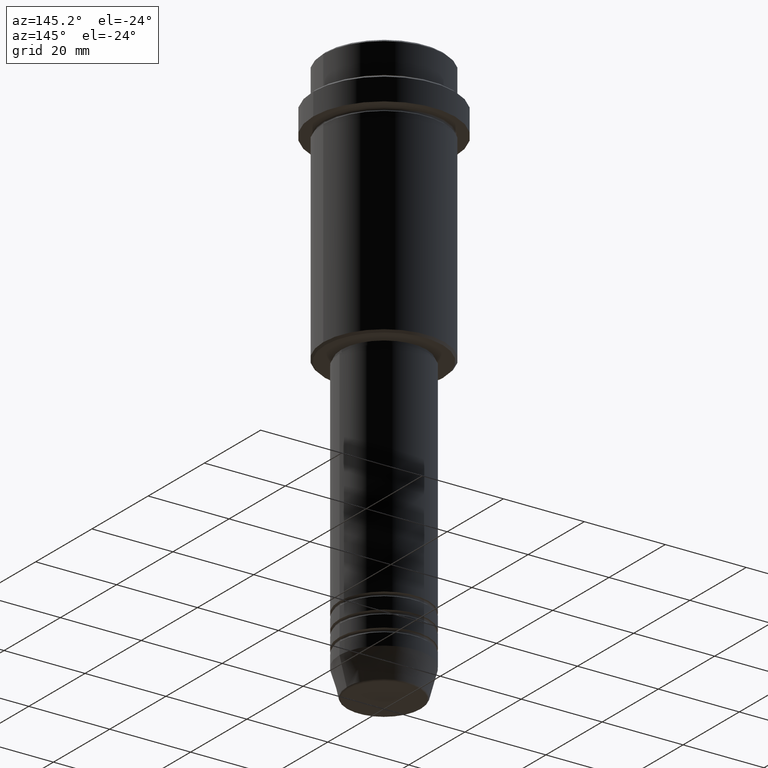
[diagram: clean part render]
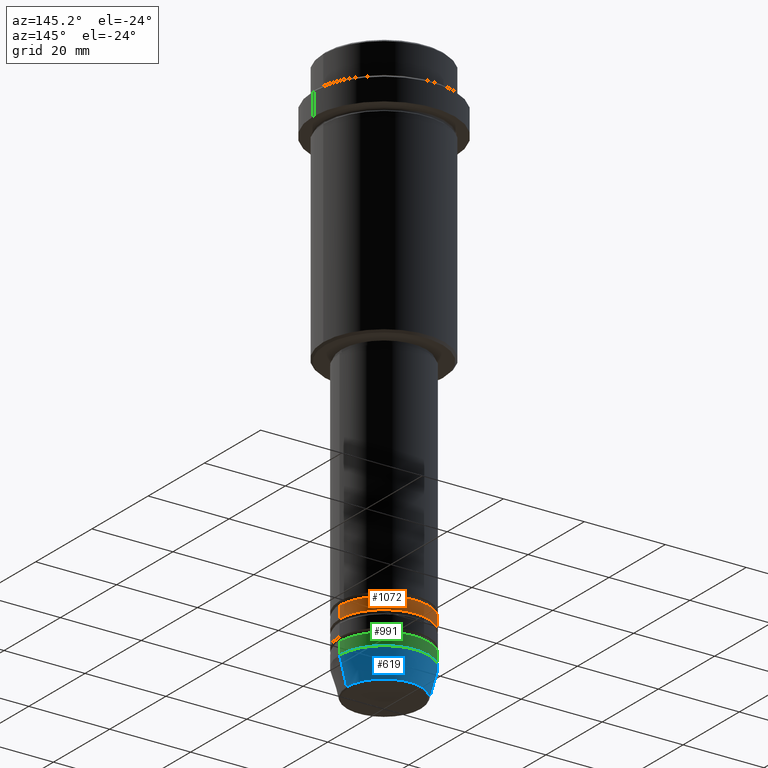
[diagram: same view with three faces highlighted in distinct colors, each labeled with its STEP entity id]
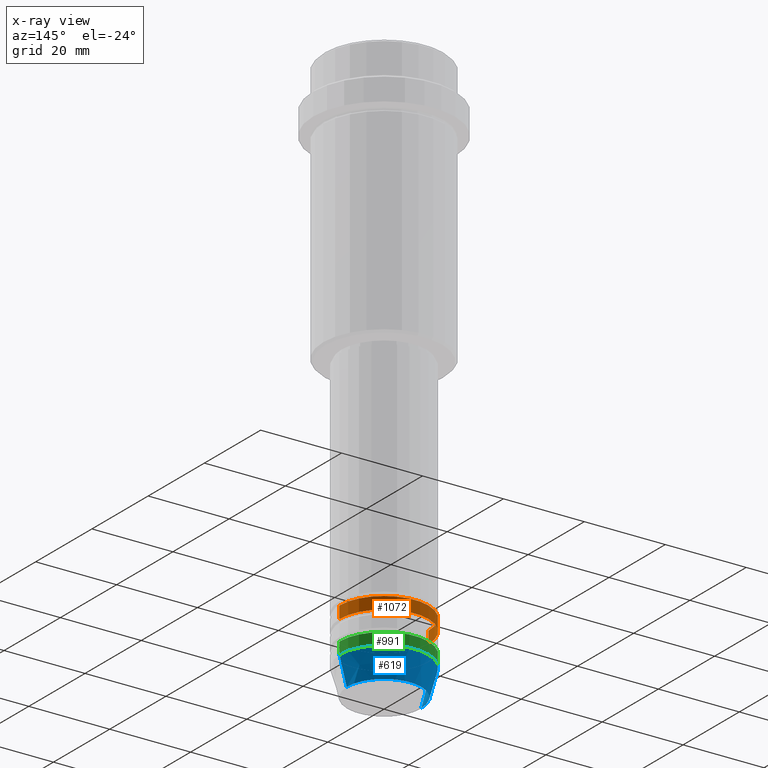
[diagram: x-ray of the same camera — body ghosted, the three highlighted faces saturated]
A machine part, auxiliary view with three faces highlighted in distinct colors.
The next image is the same camera in x-ray (body ghosted, the three faces saturated) — at least one of them is partly hidden behind the body in this view.
Their STEP definitions:

[orange] entity #1072 — the highlighted cylindrical surface (partial cylindrical patch) has radius 11 mm, axis along (-0, -0, 1).
#18 = CARTESIAN_POINT ( 'NONE',  ( -11.00000000000000000, 1.347111479062088405E-15, -121.9999999999999005 ) ) ;
#20 = DIRECTION ( 'NONE',  ( 1.000000000000000000, 0.000000000000000000, 0.000000000000000000 ) ) ;
#127 = DIRECTION ( 'NONE',  ( -0.000000000000000000, -0.000000000000000000, 1.000000000000000000 ) ) ;
#137 = ORIENTED_EDGE ( 'NONE', *, *, #1009, .T. ) ;
#143 = AXIS2_PLACEMENT_3D ( 'NONE', #860, #640, #964 ) ;
#233 = CARTESIAN_POINT ( 'NONE',  ( 11.00000000000000000, 0.000000000000000000, -121.9999999999999005 ) ) ;
#306 = FACE_OUTER_BOUND ( 'NONE', #830, .T. ) ;
#313 = CIRCLE ( 'NONE', #775, 11.00000000000000000 ) ;
#368 = DIRECTION ( 'NONE',  ( -0.000000000000000000, -0.000000000000000000, 1.000000000000000000 ) ) ;
#511 = CARTESIAN_POINT ( 'NONE',  ( 0.000000000000000000, 0.000000000000000000, 0.000000000000000000 ) ) ;
#526 = EDGE_CURVE ( 'NONE', #994, #888, #313, .T. ) ;
#562 = DIRECTION ( 'NONE',  ( -0.000000000000000000, -0.000000000000000000, 1.000000000000000000 ) ) ;
#640 = DIRECTION ( 'NONE',  ( -0.000000000000000000, -0.000000000000000000, 1.000000000000000000 ) ) ;
#681 = LINE ( 'NONE', #1111, #938 ) ;
#691 = DIRECTION ( 'NONE',  ( -0.000000000000000000, -0.000000000000000000, 1.000000000000000000 ) ) ;
#775 = AXIS2_PLACEMENT_3D ( 'NONE', #1347, #691, #20 ) ;
#789 = ORIENTED_EDGE ( 'NONE', *, *, #881, .F. ) ;
#823 = AXIS2_PLACEMENT_3D ( 'NONE', #511, #368, #923 ) ;
#825 = VERTEX_POINT ( 'NONE', #929 ) ;
#830 = EDGE_LOOP ( 'NONE', ( #835, #137, #1411, #789 ) ) ;
#835 = ORIENTED_EDGE ( 'NONE', *, *, #1097, .T. ) ;
#860 = CARTESIAN_POINT ( 'NONE',  ( 0.000000000000000000, 0.000000000000000000, -124.9999999999999005 ) ) ;
#867 = VECTOR ( 'NONE', #562, 1000.000000000000000 ) ;
#881 = EDGE_CURVE ( 'NONE', #825, #994, #1218, .T. ) ;
#888 = VERTEX_POINT ( 'NONE', #18 ) ;
#893 = CARTESIAN_POINT ( 'NONE',  ( -11.00000000000000000, 1.347111479062088405E-15, -124.9999999999999005 ) ) ;
#907 = CARTESIAN_POINT ( 'NONE',  ( 11.00000000000000000, 0.000000000000000000, 0.000000000000000000 ) ) ;
#923 = DIRECTION ( 'NONE',  ( 1.000000000000000000, 0.000000000000000000, 0.000000000000000000 ) ) ;
#929 = CARTESIAN_POINT ( 'NONE',  ( 11.00000000000000000, 0.000000000000000000, -124.9999999999999005 ) ) ;
#938 = VECTOR ( 'NONE', #127, 1000.000000000000000 ) ;
#964 = DIRECTION ( 'NONE',  ( 1.000000000000000000, 0.000000000000000000, 0.000000000000000000 ) ) ;
#994 = VERTEX_POINT ( 'NONE', #233 ) ;
#1009 = EDGE_CURVE ( 'NONE', #1195, #888, #681, .T. ) ;
#1072 = ADVANCED_FACE ( 'NONE', ( #306 ), #1271, .T. ) ;
#1097 = EDGE_CURVE ( 'NONE', #825, #1195, #1361, .T. ) ;
#1111 = CARTESIAN_POINT ( 'NONE',  ( -11.00000000000000000, 1.347111479062088405E-15, 0.000000000000000000 ) ) ;
#1195 = VERTEX_POINT ( 'NONE', #893 ) ;
#1218 = LINE ( 'NONE', #907, #867 ) ;
#1271 = CYLINDRICAL_SURFACE ( 'NONE', #823, 11.00000000000000000 ) ;
#1347 = CARTESIAN_POINT ( 'NONE',  ( 0.000000000000000000, 0.000000000000000000, -121.9999999999999005 ) ) ;
#1361 = CIRCLE ( 'NONE', #143, 11.00000000000000000 ) ;
#1411 = ORIENTED_EDGE ( 'NONE', *, *, #526, .F. ) ;

[blue] entity #619 — the highlighted conical surface has half-angle 15 deg.
#17 = DIRECTION ( 'NONE',  ( 0.2588190451025213501, 0.000000000000000000, 0.9659258262890680902 ) ) ;
#49 = CARTESIAN_POINT ( 'NONE',  ( -11.00000000000000000, 1.347111479062088405E-15, -133.0000000000000000 ) ) ;
#57 = ORIENTED_EDGE ( 'NONE', *, *, #1204, .T. ) ;
#69 = ORIENTED_EDGE ( 'NONE', *, *, #1193, .F. ) ;
#107 = DIRECTION ( 'NONE',  ( -0.000000000000000000, -0.000000000000000000, 1.000000000000000000 ) ) ;
#114 = LINE ( 'NONE', #1199, #884 ) ;
#185 = DIRECTION ( 'NONE',  ( -0.2588190451025213501, 3.169619151431772337E-17, 0.9659258262890680902 ) ) ;
#189 = ORIENTED_EDGE ( 'NONE', *, *, #800, .T. ) ;
#232 = CARTESIAN_POINT ( 'NONE',  ( 11.00000000000000000, 0.000000000000000000, -133.0000000000000000 ) ) ;
#270 = DIRECTION ( 'NONE',  ( -0.000000000000000000, -0.000000000000000000, 1.000000000000000000 ) ) ;
#334 = CIRCLE ( 'NONE', #1073, 9.223655072137189492 ) ;
#377 = CONICAL_SURFACE ( 'NONE', #644, 11.00000000000000000, 0.2617993877991500740 ) ;
#464 = DIRECTION ( 'NONE',  ( 1.000000000000000000, 0.000000000000000000, 0.000000000000000000 ) ) ;
#473 = FACE_OUTER_BOUND ( 'NONE', #732, .T. ) ;
#496 = VECTOR ( 'NONE', #185, 1000.000000000000000 ) ;
#543 = CIRCLE ( 'NONE', #1359, 11.00000000000000000 ) ;
#553 = CARTESIAN_POINT ( 'NONE',  ( 9.223655072137189492, 0.000000000000000000, -139.6294095225512706 ) ) ;
#564 = VERTEX_POINT ( 'NONE', #1052 ) ;
#583 = VERTEX_POINT ( 'NONE', #553 ) ;
#616 = DIRECTION ( 'NONE',  ( 1.000000000000000000, 0.000000000000000000, 0.000000000000000000 ) ) ;
#619 = ADVANCED_FACE ( 'NONE', ( #473 ), #377, .T. ) ;
#624 = CARTESIAN_POINT ( 'NONE',  ( -11.00000000000000000, 1.347111479062088405E-15, -133.0000000000000000 ) ) ;
#644 = AXIS2_PLACEMENT_3D ( 'NONE', #1257, #270, #464 ) ;
#711 = EDGE_CURVE ( 'NONE', #1269, #1302, #543, .T. ) ;
#732 = EDGE_LOOP ( 'NONE', ( #57, #189, #741, #69 ) ) ;
#741 = ORIENTED_EDGE ( 'NONE', *, *, #711, .F. ) ;
#800 = EDGE_CURVE ( 'NONE', #564, #1302, #1154, .T. ) ;
#884 = VECTOR ( 'NONE', #17, 1000.000000000000000 ) ;
#1046 = DIRECTION ( 'NONE',  ( -0.000000000000000000, -0.000000000000000000, 1.000000000000000000 ) ) ;
#1052 = CARTESIAN_POINT ( 'NONE',  ( -9.223655072137189492, 1.238341722557647202E-15, -139.6294095225512706 ) ) ;
#1073 = AXIS2_PLACEMENT_3D ( 'NONE', #1303, #107, #1403 ) ;
#1154 = LINE ( 'NONE', #624, #496 ) ;
#1193 = EDGE_CURVE ( 'NONE', #583, #1269, #114, .T. ) ;
#1199 = CARTESIAN_POINT ( 'NONE',  ( 11.00000000000000000, 0.000000000000000000, -133.0000000000000000 ) ) ;
#1204 = EDGE_CURVE ( 'NONE', #583, #564, #334, .T. ) ;
#1257 = CARTESIAN_POINT ( 'NONE',  ( 0.000000000000000000, 0.000000000000000000, -133.0000000000000000 ) ) ;
#1269 = VERTEX_POINT ( 'NONE', #232 ) ;
#1274 = CARTESIAN_POINT ( 'NONE',  ( 0.000000000000000000, 0.000000000000000000, -133.0000000000000000 ) ) ;
#1302 = VERTEX_POINT ( 'NONE', #49 ) ;
#1303 = CARTESIAN_POINT ( 'NONE',  ( 0.000000000000000000, 0.000000000000000000, -139.6294095225512706 ) ) ;
#1359 = AXIS2_PLACEMENT_3D ( 'NONE', #1274, #1046, #616 ) ;
#1403 = DIRECTION ( 'NONE',  ( 1.000000000000000000, 0.000000000000000000, 0.000000000000000000 ) ) ;

[green] entity #991 — the highlighted cylindrical surface (partial cylindrical patch) has radius 11 mm, axis along (-0, -0, 1).
#49 = CARTESIAN_POINT ( 'NONE',  ( -11.00000000000000000, 1.347111479062088405E-15, -133.0000000000000000 ) ) ;
#64 = VERTEX_POINT ( 'NONE', #651 ) ;
#113 = ORIENTED_EDGE ( 'NONE', *, *, #859, .T. ) ;
#230 = FACE_OUTER_BOUND ( 'NONE', #479, .T. ) ;
#232 = CARTESIAN_POINT ( 'NONE',  ( 11.00000000000000000, 0.000000000000000000, -133.0000000000000000 ) ) ;
#242 = DIRECTION ( 'NONE',  ( 1.000000000000000000, 0.000000000000000000, 0.000000000000000000 ) ) ;
#333 = CIRCLE ( 'NONE', #1135, 11.00000000000000000 ) ;
#341 = DIRECTION ( 'NONE',  ( -0.000000000000000000, -0.000000000000000000, 1.000000000000000000 ) ) ;
#479 = EDGE_LOOP ( 'NONE', ( #1320, #113, #946, #1166 ) ) ;
#512 = LINE ( 'NONE', #1223, #1300 ) ;
#543 = CIRCLE ( 'NONE', #1359, 11.00000000000000000 ) ;
#544 = AXIS2_PLACEMENT_3D ( 'NONE', #1104, #341, #788 ) ;
#581 = LINE ( 'NONE', #900, #915 ) ;
#616 = DIRECTION ( 'NONE',  ( 1.000000000000000000, 0.000000000000000000, 0.000000000000000000 ) ) ;
#645 = VERTEX_POINT ( 'NONE', #1044 ) ;
#651 = CARTESIAN_POINT ( 'NONE',  ( -11.00000000000000000, 1.347111479062088405E-15, -130.0000000000000000 ) ) ;
#675 = CYLINDRICAL_SURFACE ( 'NONE', #544, 11.00000000000000000 ) ;
#699 = DIRECTION ( 'NONE',  ( -0.000000000000000000, -0.000000000000000000, 1.000000000000000000 ) ) ;
#711 = EDGE_CURVE ( 'NONE', #1269, #1302, #543, .T. ) ;
#788 = DIRECTION ( 'NONE',  ( 1.000000000000000000, 0.000000000000000000, 0.000000000000000000 ) ) ;
#859 = EDGE_CURVE ( 'NONE', #1302, #64, #512, .T. ) ;
#900 = CARTESIAN_POINT ( 'NONE',  ( 11.00000000000000000, 0.000000000000000000, 0.000000000000000000 ) ) ;
#915 = VECTOR ( 'NONE', #993, 1000.000000000000000 ) ;
#922 = EDGE_CURVE ( 'NONE', #645, #64, #333, .T. ) ;
#946 = ORIENTED_EDGE ( 'NONE', *, *, #922, .F. ) ;
#950 = EDGE_CURVE ( 'NONE', #1269, #645, #581, .T. ) ;
#991 = ADVANCED_FACE ( 'NONE', ( #230 ), #675, .T. ) ;
#993 = DIRECTION ( 'NONE',  ( -0.000000000000000000, -0.000000000000000000, 1.000000000000000000 ) ) ;
#1023 = DIRECTION ( 'NONE',  ( -0.000000000000000000, -0.000000000000000000, 1.000000000000000000 ) ) ;
#1044 = CARTESIAN_POINT ( 'NONE',  ( 11.00000000000000000, 0.000000000000000000, -130.0000000000000000 ) ) ;
#1046 = DIRECTION ( 'NONE',  ( -0.000000000000000000, -0.000000000000000000, 1.000000000000000000 ) ) ;
#1104 = CARTESIAN_POINT ( 'NONE',  ( 0.000000000000000000, 0.000000000000000000, 0.000000000000000000 ) ) ;
#1135 = AXIS2_PLACEMENT_3D ( 'NONE', #1336, #699, #242 ) ;
#1166 = ORIENTED_EDGE ( 'NONE', *, *, #950, .F. ) ;
#1223 = CARTESIAN_POINT ( 'NONE',  ( -11.00000000000000000, 1.347111479062088405E-15, 0.000000000000000000 ) ) ;
#1269 = VERTEX_POINT ( 'NONE', #232 ) ;
#1274 = CARTESIAN_POINT ( 'NONE',  ( 0.000000000000000000, 0.000000000000000000, -133.0000000000000000 ) ) ;
#1300 = VECTOR ( 'NONE', #1023, 1000.000000000000000 ) ;
#1302 = VERTEX_POINT ( 'NONE', #49 ) ;
#1320 = ORIENTED_EDGE ( 'NONE', *, *, #711, .T. ) ;
#1336 = CARTESIAN_POINT ( 'NONE',  ( 0.000000000000000000, 0.000000000000000000, -130.0000000000000000 ) ) ;
#1359 = AXIS2_PLACEMENT_3D ( 'NONE', #1274, #1046, #616 ) ;